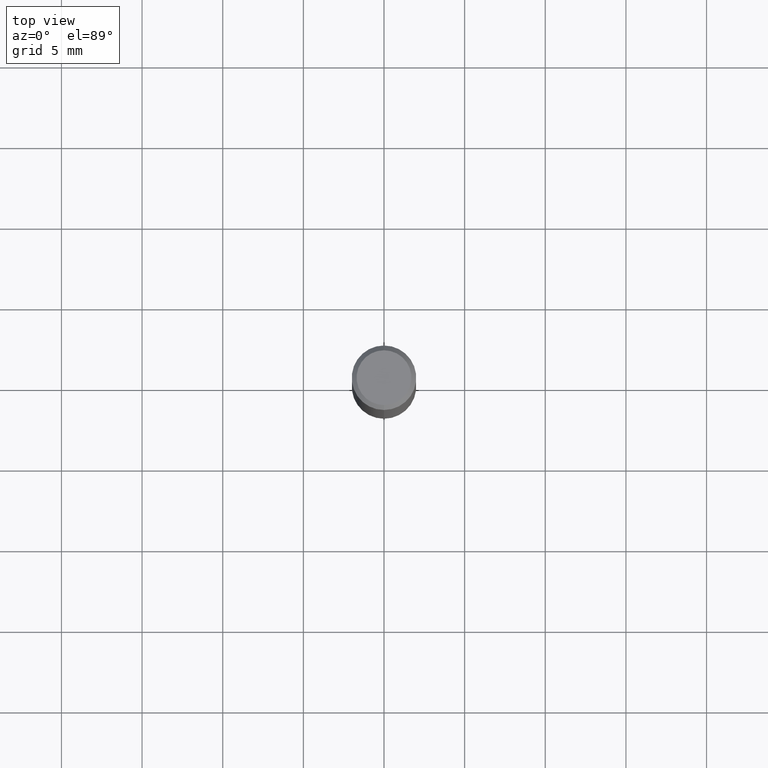
[diagram: clean part render]
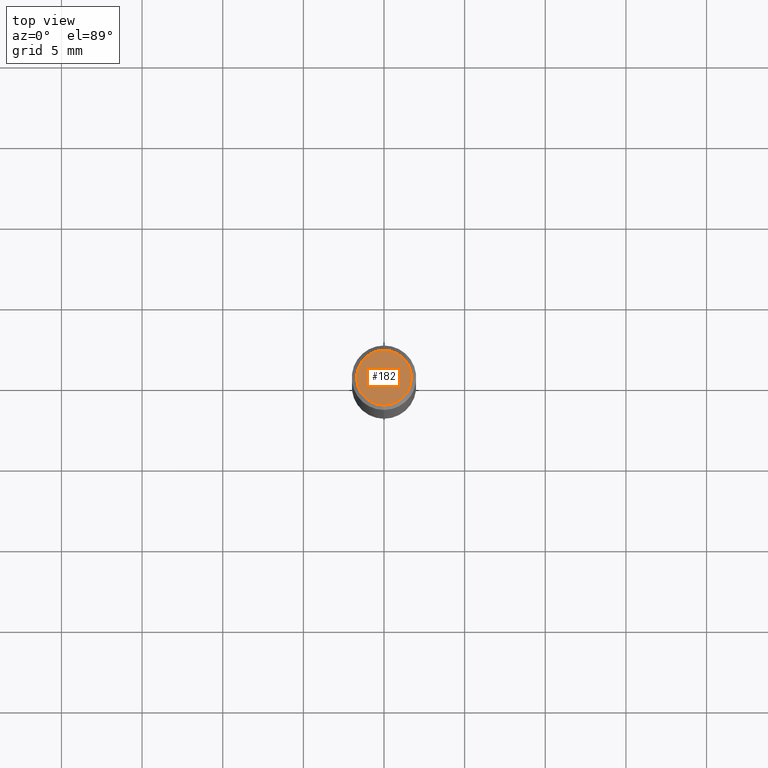
[diagram: same view with one face highlighted and labeled with its STEP entity id]
A machine part, top view. The second image highlights one B-rep face of the part: STEP entity #182.
In plain terms, the highlighted planar face has unit normal (-0, 0, 1).
Its self-contained STEP definition (entity closure, byte-faithful):
#130=EDGE_CURVE('',#196,#156,#272,.T.);
#156=VERTEX_POINT('',#302);
#164=EDGE_CURVE('',#156,#196,#311,.T.);
#182=ADVANCED_FACE('',(#332),#333,.T.);
#196=VERTEX_POINT('',#348);
#272=CIRCLE('',#425,1.7);
#302=CARTESIAN_POINT('',(2.08183080149804E-016,-1.7,0.0));
#311=CIRCLE('',#477,1.7);
#332=FACE_OUTER_BOUND('',#501,.T.);
#333=PLANE('',#502);
#348=CARTESIAN_POINT('',(0.0,1.7,0.0));
#425=AXIS2_PLACEMENT_3D('',#595,#596,#597);
#477=AXIS2_PLACEMENT_3D('',#652,#653,#654);
#501=EDGE_LOOP('',(#683,#684));
#502=AXIS2_PLACEMENT_3D('',#685,#686,#687);
#595=CARTESIAN_POINT('',(0.0,0.0,0.0));
#596=DIRECTION('',(0.0,0.0,-1.0));
#597=DIRECTION('',(0.0,1.0,0.0));
#652=CARTESIAN_POINT('',(0.0,0.0,0.0));
#653=DIRECTION('',(0.0,0.0,-1.0));
#654=DIRECTION('',(0.0,1.0,0.0));
#683=ORIENTED_EDGE('',*,*,#130,.F.);
#684=ORIENTED_EDGE('',*,*,#164,.F.);
#685=CARTESIAN_POINT('',(0.0,0.85,0.0));
#686=DIRECTION('',(-0.0,0.0,1.0));
#687=DIRECTION('',(0.0,-1.0,0.0));